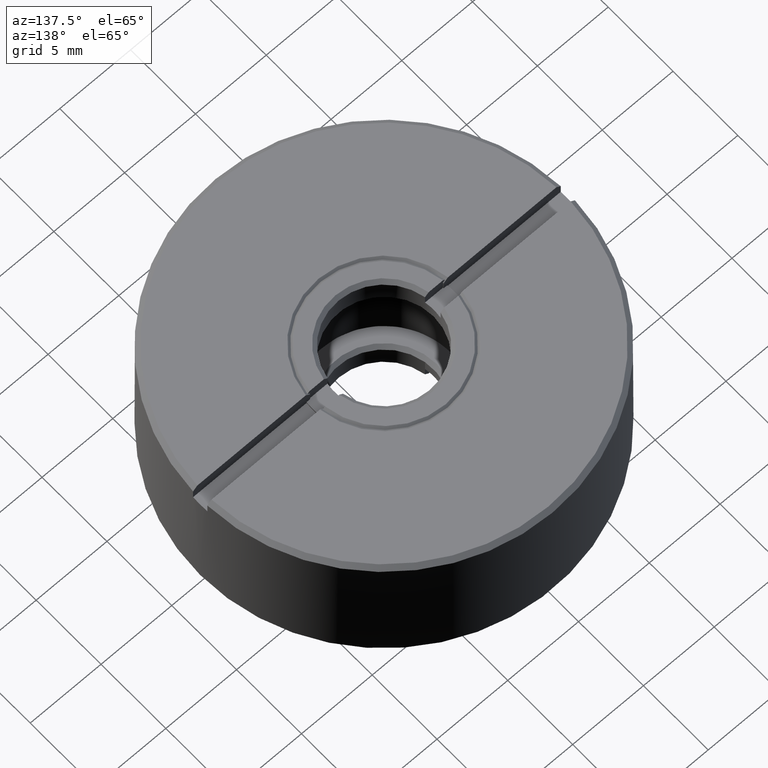
[diagram: clean part render]
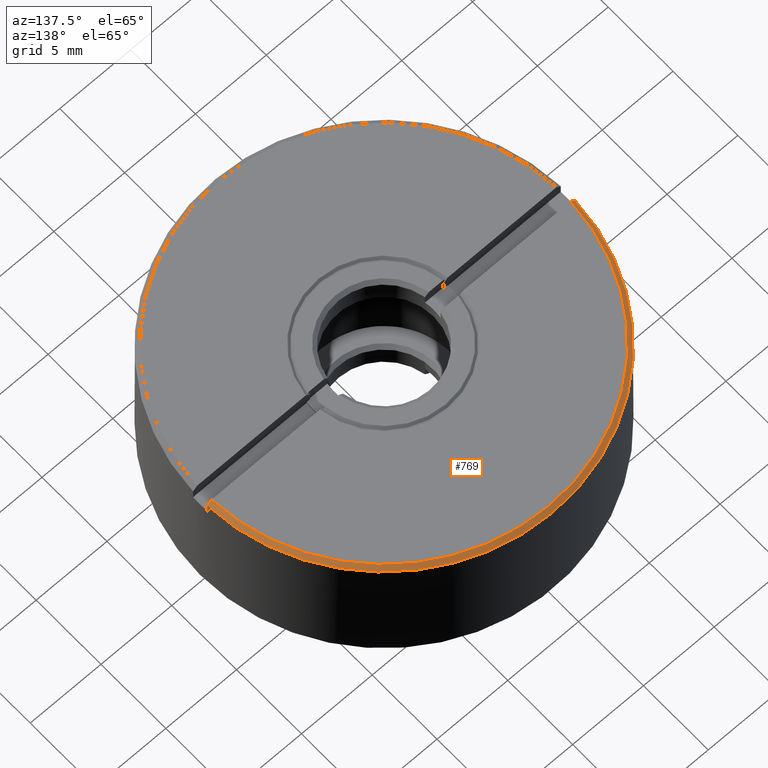
[diagram: same view with one face highlighted and labeled with its STEP entity id]
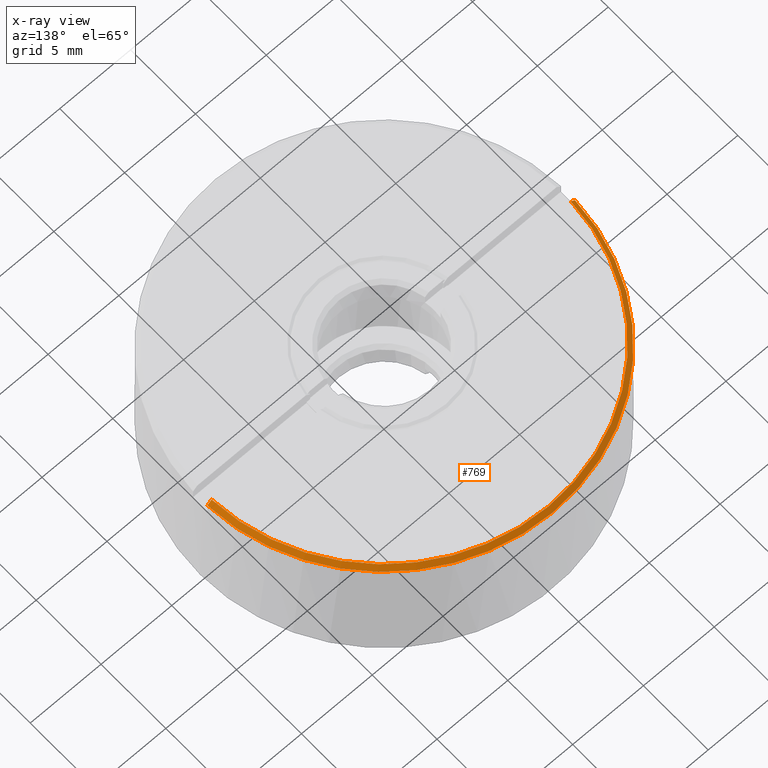
[diagram: x-ray of the same camera — body ghosted, the highlighted face saturated]
A machine part, auxiliary view. The second image highlights one B-rep face of the part: STEP entity #769.
The next image is the same camera in x-ray: the body ghosted, the highlighted face saturated — about 0% of this face is hidden behind the body in this view.
In plain terms, the highlighted conical surface has half-angle 45 deg.
Its self-contained STEP definition (entity closure, byte-faithful):
#2 = ORIENTED_EDGE ( 'NONE', *, *, #1062, .F. ) ;
#34 = CARTESIAN_POINT ( 'NONE',  ( -12.88826949536930400, 0.5500000000000000444, 4.800001059946460202 ) ) ;
#178 = CARTESIAN_POINT ( 'NONE',  ( 12.78817778314701137, 0.5500000000000000444, 4.900001085019417779 ) ) ;
#187 = CARTESIAN_POINT ( 'NONE',  ( 12.98836017363239037, 0.5500000000000000444, 4.699999999999988631 ) ) ;
#203 = EDGE_CURVE ( 'NONE', #1183, #441, #1003, .T. ) ;
#262 = DIRECTION ( 'NONE',  ( 0.000000000000000000, 0.000000000000000000, -1.000000000000000000 ) ) ;
#313 = ORIENTED_EDGE ( 'NONE', *, *, #644, .T. ) ;
#374 = ORIENTED_EDGE ( 'NONE', *, *, #203, .T. ) ;
#406 = CARTESIAN_POINT ( 'NONE',  ( 12.68808496188450441, 0.5500000000000000444, 5.000000000000002665 ) ) ;
#407 = CARTESIAN_POINT ( 'NONE',  ( -12.98836017363239037, 0.5500000000000000444, 4.699999999999988631 ) ) ;
#441 = VERTEX_POINT ( 'NONE', #501 ) ;
#483 = CARTESIAN_POINT ( 'NONE',  ( -12.68808496188450619, 0.5500000000000000444, 5.000000000000000888 ) ) ;
#499 = FACE_OUTER_BOUND ( 'NONE', #541, .T. ) ;
#501 = CARTESIAN_POINT ( 'NONE',  ( 12.98836017363239037, 0.5500000000000000444, 4.699999999999988631 ) ) ;
#541 = EDGE_LOOP ( 'NONE', ( #313, #1201, #374, #2 ) ) ;
#566 = DIRECTION ( 'NONE',  ( 0.000000000000000000, 0.000000000000000000, -1.000000000000000000 ) ) ;
#586 = CARTESIAN_POINT ( 'NONE',  ( 12.68808496188450441, 0.5500000000000000444, 5.000000000000002665 ) ) ;
#644 = EDGE_CURVE ( 'NONE', #1391, #818, #1235, .T. ) ;
#645 = CARTESIAN_POINT ( 'NONE',  ( -12.78817778314701492, 0.5500000000000000444, 4.900001085019415115 ) ) ;
#701 = CARTESIAN_POINT ( 'NONE',  ( 0.000000000000000000, 0.000000000000000000, 4.699999999999988631 ) ) ;
#703 = AXIS2_PLACEMENT_3D ( 'NONE', #1076, #1172, #817 ) ;
#750 = DIRECTION ( 'NONE',  ( -1.000000000000000000, 0.000000000000000000, 0.000000000000000000 ) ) ;
#769 = ADVANCED_FACE ( 'NONE', ( #499 ), #1309, .T. ) ;
#786 = CIRCLE ( 'NONE', #1335, 12.69999999999998863 ) ;
#812 = CARTESIAN_POINT ( 'NONE',  ( -12.98836017363239037, 0.5500000000000000444, 4.699999999999988631 ) ) ;
#817 = DIRECTION ( 'NONE',  ( -1.000000000000000000, 0.000000000000000000, 0.000000000000000000 ) ) ;
#818 = VERTEX_POINT ( 'NONE', #483 ) ;
#844 = EDGE_CURVE ( 'NONE', #818, #1183, #786, .T. ) ;
#901 = CARTESIAN_POINT ( 'NONE',  ( 0.000000000000000000, 0.000000000000000000, 5.000000000000001776 ) ) ;
#930 = CARTESIAN_POINT ( 'NONE',  ( 12.88826949536930400, 0.5500000000000000444, 4.800001059946461979 ) ) ;
#997 = DIRECTION ( 'NONE',  ( -1.000000000000000000, 0.000000000000000000, 0.000000000000000000 ) ) ;
#1003 = B_SPLINE_CURVE_WITH_KNOTS ( 'NONE', 3,
 ( #406, #178, #930, #187 ),
 .UNSPECIFIED., .F., .F.,
 ( 4, 4 ),
 ( 2.453269466693398698E-18, 0.0004244587174157788095 ),
 .UNSPECIFIED. ) ;
#1062 = EDGE_CURVE ( 'NONE', #1391, #441, #1384, .T. ) ;
#1076 = CARTESIAN_POINT ( 'NONE',  ( 0.000000000000000000, 0.000000000000000000, 4.699999999999987743 ) ) ;
#1148 = CARTESIAN_POINT ( 'NONE',  ( -12.68808496188450619, 0.5500000000000000444, 5.000000000000000888 ) ) ;
#1172 = DIRECTION ( 'NONE',  ( -0.000000000000000000, -0.000000000000000000, -1.000000000000000000 ) ) ;
#1183 = VERTEX_POINT ( 'NONE', #586 ) ;
#1201 = ORIENTED_EDGE ( 'NONE', *, *, #844, .T. ) ;
#1235 = B_SPLINE_CURVE_WITH_KNOTS ( 'NONE', 3,
 ( #812, #34, #645, #1148 ),
 .UNSPECIFIED., .F., .F.,
 ( 4, 4 ),
 ( 0.000000000000000000, 0.0004244587174157738222 ),
 .UNSPECIFIED. ) ;
#1309 = CONICAL_SURFACE ( 'NONE', #1440, 13.00000000000000178, 0.7853981633974468357 ) ;
#1335 = AXIS2_PLACEMENT_3D ( 'NONE', #901, #262, #750 ) ;
#1384 = CIRCLE ( 'NONE', #703, 13.00000000000000355 ) ;
#1391 = VERTEX_POINT ( 'NONE', #407 ) ;
#1440 = AXIS2_PLACEMENT_3D ( 'NONE', #701, #566, #997 ) ;